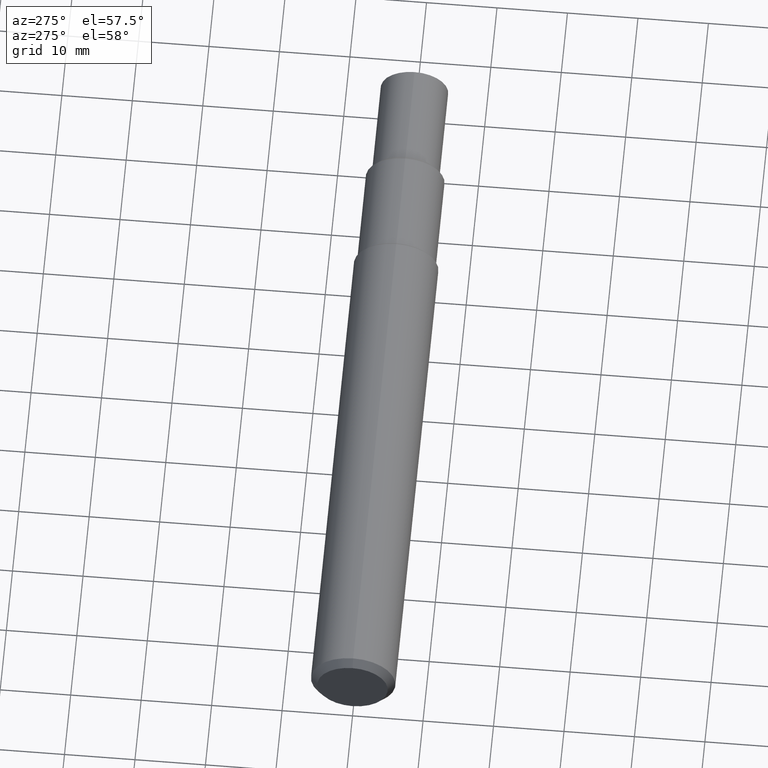
[diagram: clean part render]
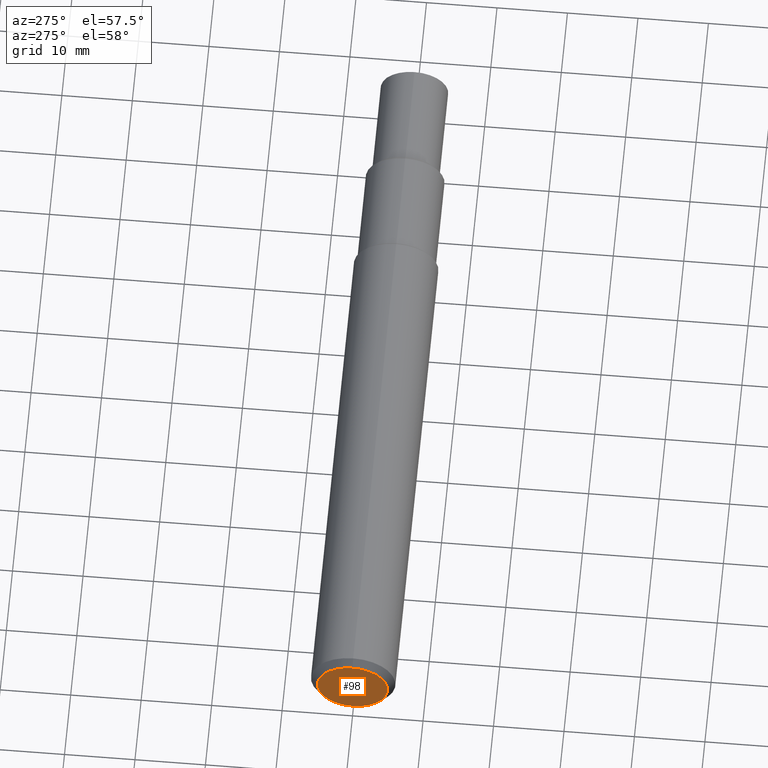
[diagram: same view with one face highlighted and labeled with its STEP entity id]
A machine part, auxiliary view. The second image highlights one B-rep face of the part: STEP entity #98.
In plain terms, the highlighted planar face has unit normal (-1, 0, 0).
Its self-contained STEP definition (entity closure, byte-faithful):
#6 = DIRECTION ( 'NONE',  ( -1.000000000000000000, 0.000000000000000000, 0.000000000000000000 ) ) ;
#24 = CIRCLE ( 'NONE', #268, 0.1968503937007874127 ) ;
#26 = AXIS2_PLACEMENT_3D ( 'NONE', #462, #130, #237 ) ;
#35 = CIRCLE ( 'NONE', #26, 0.1968503937007874127 ) ;
#41 = DIRECTION ( 'NONE',  ( 0.000000000000000000, 0.000000000000000000, 1.000000000000000000 ) ) ;
#70 = ORIENTED_EDGE ( 'NONE', *, *, #327, .F. ) ;
#87 = CARTESIAN_POINT ( 'NONE',  ( 4.268512490100411279E-18, 0.000000000000000000, 0.000000000000000000 ) ) ;
#98 = ADVANCED_FACE ( 'NONE', ( #115 ), #148, .T. ) ;
#115 = FACE_OUTER_BOUND ( 'NONE', #334, .T. ) ;
#130 = DIRECTION ( 'NONE',  ( 1.000000000000000000, -0.000000000000000000, -0.000000000000000000 ) ) ;
#148 = PLANE ( 'NONE',  #218 ) ;
#201 = DIRECTION ( 'NONE',  ( 1.000000000000000000, -0.000000000000000000, -0.000000000000000000 ) ) ;
#206 = ORIENTED_EDGE ( 'NONE', *, *, #270, .F. ) ;
#218 = AXIS2_PLACEMENT_3D ( 'NONE', #373, #6, #41 ) ;
#237 = DIRECTION ( 'NONE',  ( 0.000000000000000000, 0.000000000000000000, -1.000000000000000000 ) ) ;
#239 = CARTESIAN_POINT ( 'NONE',  ( 4.268512490100411279E-18, 2.651794250122221800E-17, 0.1968503937007874127 ) ) ;
#268 = AXIS2_PLACEMENT_3D ( 'NONE', #87, #201, #417 ) ;
#270 = EDGE_CURVE ( 'NONE', #471, #295, #24, .T. ) ;
#295 = VERTEX_POINT ( 'NONE', #239 ) ;
#327 = EDGE_CURVE ( 'NONE', #295, #471, #35, .T. ) ;
#334 = EDGE_LOOP ( 'NONE', ( #206, #70 ) ) ;
#363 = CARTESIAN_POINT ( 'NONE',  ( 4.268512490100411279E-18, 0.000000000000000000, -0.1968503937007874127 ) ) ;
#373 = CARTESIAN_POINT ( 'NONE',  ( 1.186075246418302955E-18, 0.1968503937007874127, 0.000000000000000000 ) ) ;
#417 = DIRECTION ( 'NONE',  ( 0.000000000000000000, 0.000000000000000000, -1.000000000000000000 ) ) ;
#462 = CARTESIAN_POINT ( 'NONE',  ( 4.268512490100411279E-18, 0.000000000000000000, 0.000000000000000000 ) ) ;
#471 = VERTEX_POINT ( 'NONE', #363 ) ;